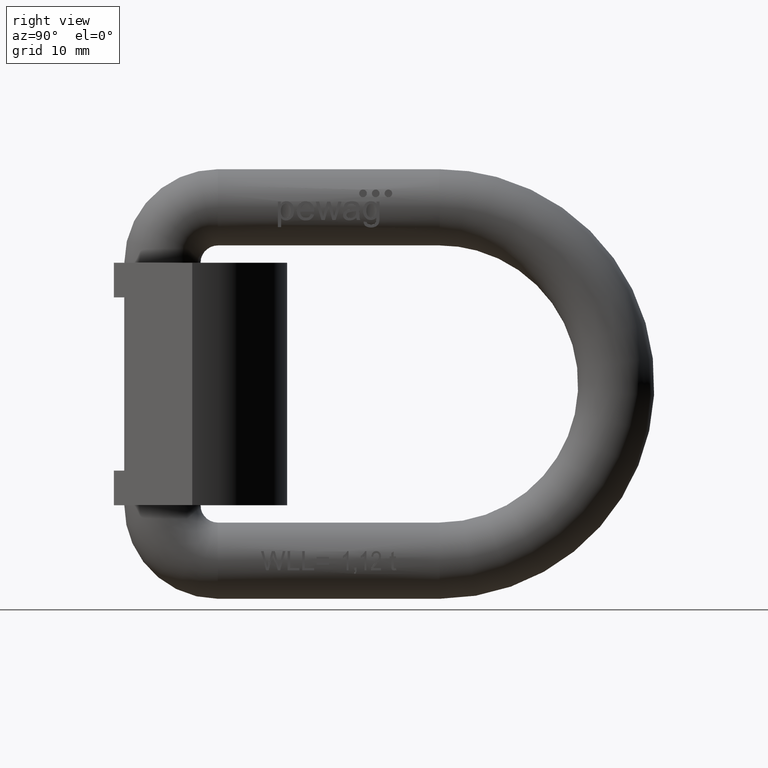
[diagram: clean part render]
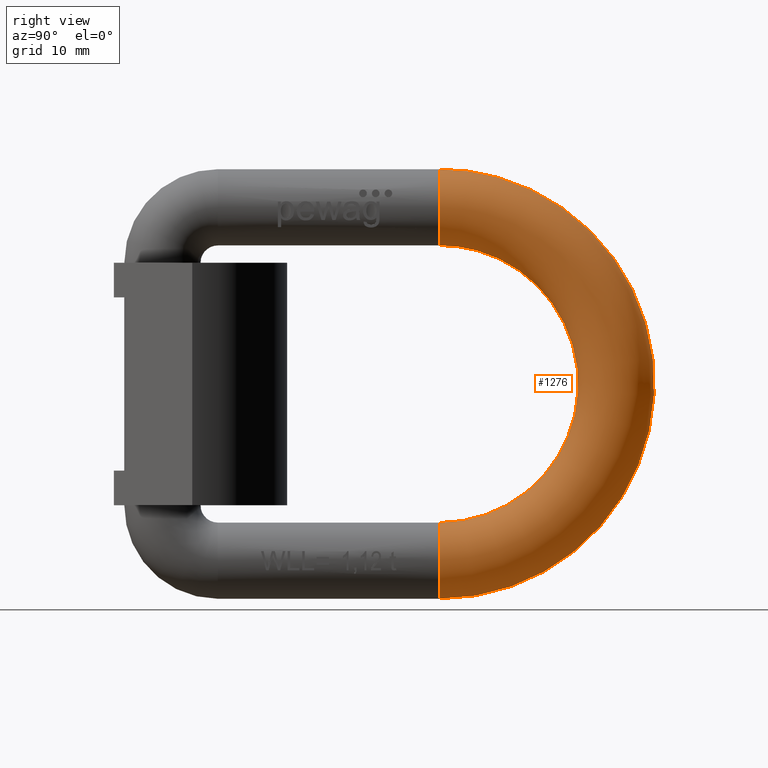
[diagram: same view with one face highlighted and labeled with its STEP entity id]
A machine part, right view. The second image highlights one B-rep face of the part: STEP entity #1276.
In plain terms, the highlighted toroidal blend (fillet) surface has major radius 25.5 mm and minor (blend) radius 5.5 mm.
Its self-contained STEP definition (entity closure, byte-faithful):
#196=TOROIDAL_SURFACE('',#7892,25.5,5.5);
#977=FACE_BOUND('',#2152,.T.);
#978=FACE_BOUND('',#2153,.T.);
#1276=ADVANCED_FACE('',(#977,#978),#196,.T.);
#2152=EDGE_LOOP('',(#3056));
#2153=EDGE_LOOP('',(#3057));
#2566=CIRCLE('',#7785,5.5);
#2617=CIRCLE('',#7870,5.5);
#3056=ORIENTED_EDGE('',*,*,#5869,.T.);
#3057=ORIENTED_EDGE('',*,*,#5614,.F.);
#4860=VERTEX_POINT('',#9585);
#5115=VERTEX_POINT('',#11434);
#5614=EDGE_CURVE('',#4860,#4860,#2566,.T.);
#5869=EDGE_CURVE('',#5115,#5115,#2617,.T.);
#7785=AXIS2_PLACEMENT_3D('',#9584,#8215,#8216);
#7870=AXIS2_PLACEMENT_3D('',#11433,#8449,#8450);
#7892=AXIS2_PLACEMENT_3D('',#12229,#8503,#8504);
#8215=DIRECTION('',(0.,-1.,1.11022302462516E-15));
#8216=DIRECTION('',(0.,-1.26161707343768E-15,-1.));
#8449=DIRECTION('',(0.,1.,3.45313375379021E-15));
#8450=DIRECTION('',(0.,-3.78485122031303E-15,1.));
#8503=DIRECTION('',(1.,0.,0.));
#8504=DIRECTION('',(0.,0.,-1.));
#9584=CARTESIAN_POINT('',(0.,47.,-25.5));
#9585=CARTESIAN_POINT('',(0.,47.,-31.));
#11433=CARTESIAN_POINT('',(0.,47.,25.5));
#11434=CARTESIAN_POINT('',(0.,46.9999999999999,31.));
#12229=CARTESIAN_POINT('',(0.,47.,0.));